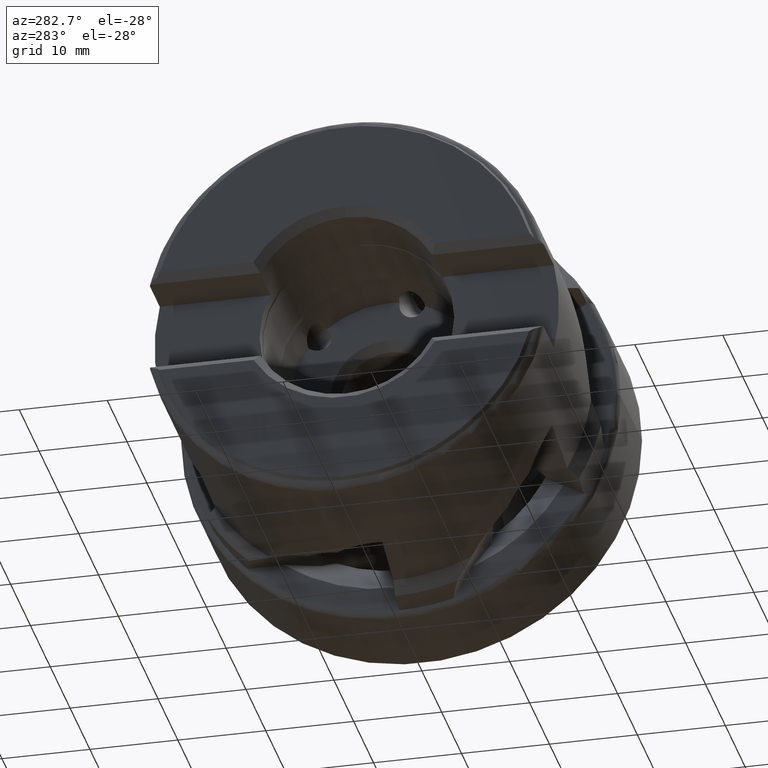
[diagram: clean part render]
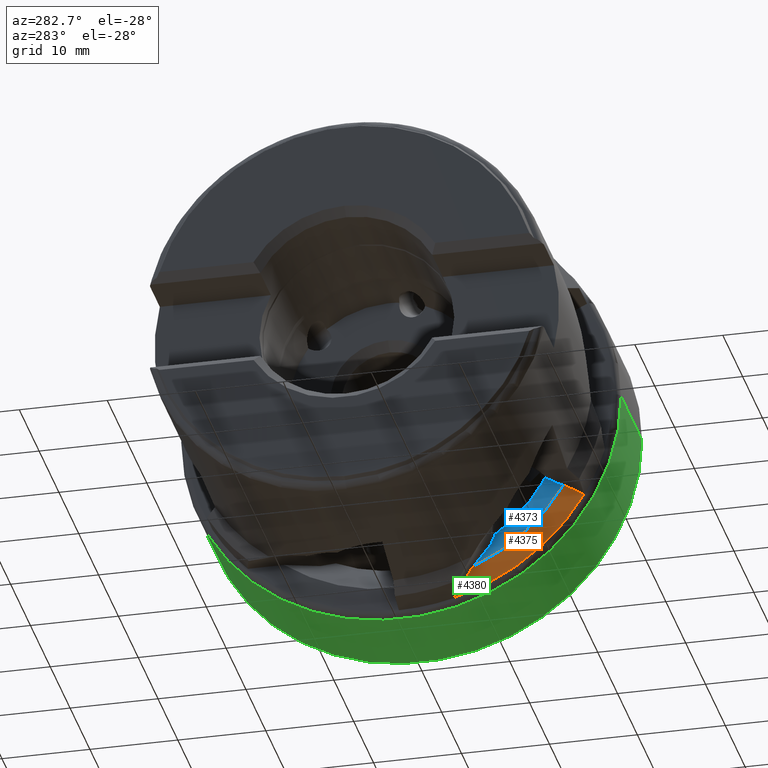
[diagram: same view with three faces highlighted in distinct colors, each labeled with its STEP entity id]
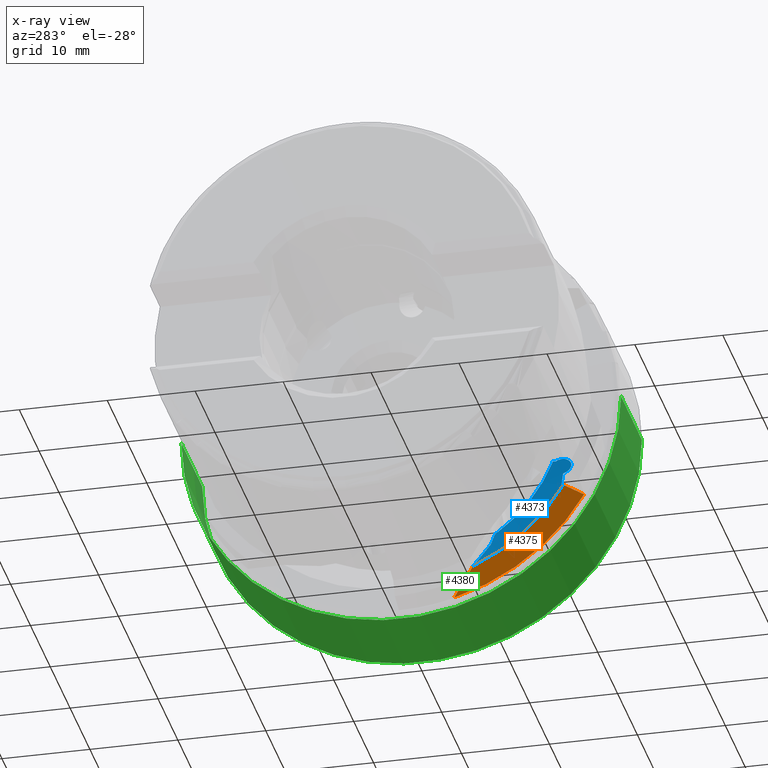
[diagram: x-ray of the same camera — body ghosted, the three highlighted faces saturated]
A machine part, auxiliary view with three faces highlighted in distinct colors.
The next image is the same camera in x-ray (body ghosted, the three faces saturated) — at least one of them is partly hidden behind the body in this view.
Their STEP definitions:

[orange] entity #4375 — the highlighted conical surface has half-angle 85.305 deg.
#482 = EDGE_CURVE ( 'NONE', #2911, #2912, #3850, .T. ) ;
#617 = EDGE_CURVE ( 'NONE', #935, #953, #3632, .T. ) ;
#935 = VERTEX_POINT ( 'NONE', #6344 ) ;
#953 = VERTEX_POINT ( 'NONE', #6359 ) ;
#1285 = EDGE_CURVE ( 'NONE', #2912, #953, #5239, .T. ) ;
#1292 = EDGE_CURVE ( 'NONE', #2911, #935, #5248, .T. ) ;
#1427 = AXIS2_PLACEMENT_3D ( 'NONE', #6489, #6490, #6491 ) ;
#1434 = AXIS2_PLACEMENT_3D ( 'NONE', #6510, #6511, #6512 ) ;
#2911 = VERTEX_POINT ( 'NONE', #6767 ) ;
#2912 = VERTEX_POINT ( 'NONE', #6768 ) ;
#3211 = EDGE_LOOP ( 'NONE', ( #7467, #7470, #7469, #7471 ) ) ;
#3632 = B_SPLINE_CURVE_WITH_KNOTS ( 'NONE', 3,
 ( #6025, #6028, #6034, #6035 ),
 .UNSPECIFIED., .F., .F.,
 ( 4, 4 ),
 ( 4.166116774084875100E-006, 0.004117374130093829800 ),
 .UNSPECIFIED. ) ;
#3850 = B_SPLINE_CURVE_WITH_KNOTS ( 'NONE', 3,
 ( #4965, #4982, #4987, #4988 ),
 .UNSPECIFIED., .F., .F.,
 ( 4, 4 ),
 ( 2.443525194107743500E-006, 0.002647737855099215200 ),
 .UNSPECIFIED. ) ;
#4375 = ADVANCED_FACE ( 'NONE', ( #8386 ), #8398, .T. ) ;
#4965 = CARTESIAN_POINT ( 'NONE',  ( -11.40432091562181500, -18.69506498201483800, -10.87711238184967400 ) ) ;
#4982 = CARTESIAN_POINT ( 'NONE',  ( -11.33214938413738400, -19.45295676266527400, -11.32197240498047800 ) ) ;
#4987 = CARTESIAN_POINT ( 'NONE',  ( -11.25997778894917700, -20.21084853596350000, -11.76683243030204000 ) ) ;
#4988 = CARTESIAN_POINT ( 'NONE',  ( -11.18780614878581000, -20.96874030407102700, -12.21169245717028300 ) ) ;
#5239 = CIRCLE ( 'NONE', #1427, 24.26547964924827700 ) ;
#5248 = CIRCLE ( 'NONE', #1434, 21.62907830789710000 ) ;
#6025 = CARTESIAN_POINT ( 'NONE',  ( -11.40432091562181300, -8.344648171946200700, -19.95454522998660700 ) ) ;
#6028 = CARTESIAN_POINT ( 'NONE',  ( -11.33849374108257600, -7.629427908861799800, -21.12244923167852700 ) ) ;
#6034 = CARTESIAN_POINT ( 'NONE',  ( -11.26564578426167700, -6.915230878216461500, -22.29054487645484500 ) ) ;
#6035 = CARTESIAN_POINT ( 'NONE',  ( -11.18780614878581200, -6.202673036638638700, -23.45933395918644500 ) ) ;
#6344 = CARTESIAN_POINT ( 'NONE',  ( -11.40432091562181300, -8.344648171946200700, -19.95454522998660700 ) ) ;
#6359 = CARTESIAN_POINT ( 'NONE',  ( -11.18780614878581200, -6.202673036638638700, -23.45933395918644500 ) ) ;
#6489 = CARTESIAN_POINT ( 'NONE',  ( -11.18780614878581200, -2.288437318624361700E-015, 0.0000000000000000000 ) ) ;
#6490 = DIRECTION ( 'NONE',  ( 1.000000000000000000, 1.224131289889662100E-016, -0.0000000000000000000 ) ) ;
#6491 = DIRECTION ( 'NONE',  ( -1.429787089356420100E-016, 1.000000000000000000, 0.0000000000000000000 ) ) ;
#6510 = CARTESIAN_POINT ( 'NONE',  ( -11.40432091562181700, -2.314941568705073600E-015, 0.0000000000000000000 ) ) ;
#6511 = DIRECTION ( 'NONE',  ( 1.000000000000000000, 1.224131289889662100E-016, -0.0000000000000000000 ) ) ;
#6512 = DIRECTION ( 'NONE',  ( -1.604066018239375200E-016, 1.000000000000000000, 0.0000000000000000000 ) ) ;
#6767 = CARTESIAN_POINT ( 'NONE',  ( -11.40432091562181500, -18.69506498201483800, -10.87711238184967400 ) ) ;
#6768 = CARTESIAN_POINT ( 'NONE',  ( -11.18780614878581000, -20.96874030407102700, -12.21169245717028300 ) ) ;
#7467 = ORIENTED_EDGE ( 'NONE', *, *, #482, .F. ) ;
#7469 = ORIENTED_EDGE ( 'NONE', *, *, #617, .T. ) ;
#7470 = ORIENTED_EDGE ( 'NONE', *, *, #1292, .T. ) ;
#7471 = ORIENTED_EDGE ( 'NONE', *, *, #1285, .F. ) ;
#8121 = AXIS2_PLACEMENT_3D ( 'NONE', #8790, #8785, #8798 ) ;
#8386 = FACE_OUTER_BOUND ( 'NONE', #3211, .T. ) ;
#8398 = CONICAL_SURFACE ( 'NONE', #8121, 24.26547964924827700, 1.488855098797280600 ) ;
#8785 = DIRECTION ( 'NONE',  ( 1.000000000000000000, 1.224131289889662100E-016, -0.0000000000000000000 ) ) ;
#8790 = CARTESIAN_POINT ( 'NONE',  ( -11.18780614878581200, -2.288437318624361700E-015, 0.0000000000000000000 ) ) ;
#8798 = DIRECTION ( 'NONE',  ( -1.429787089356420100E-016, 1.000000000000000000, 0.0000000000000000000 ) ) ;

[blue] entity #4373 — the highlighted conical surface has half-angle 56.193 deg.
#312 = EDGE_CURVE ( 'NONE', #1734, #1670, #1935, .T. ) ;
#464 = EDGE_CURVE ( 'NONE', #3030, #1734, #3634, .T. ) ;
#469 = EDGE_CURVE ( 'NONE', #2909, #2902, #3876, .T. ) ;
#481 = EDGE_CURVE ( 'NONE', #2909, #2911, #3891, .T. ) ;
#612 = EDGE_CURVE ( 'NONE', #1670, #946, #3643, .T. ) ;
#615 = EDGE_CURVE ( 'NONE', #946, #935, #3894, .T. ) ;
#626 = EDGE_CURVE ( 'NONE', #2902, #3030, #2305, .T. ) ;
#935 = VERTEX_POINT ( 'NONE', #6344 ) ;
#946 = VERTEX_POINT ( 'NONE', #6353 ) ;
#1292 = EDGE_CURVE ( 'NONE', #2911, #935, #5248, .T. ) ;
#1332 = AXIS2_PLACEMENT_3D ( 'NONE', #4085, #4086, #4087 ) ;
#1434 = AXIS2_PLACEMENT_3D ( 'NONE', #6510, #6511, #6512 ) ;
#1670 = VERTEX_POINT ( 'NONE', #6611 ) ;
#1734 = VERTEX_POINT ( 'NONE', #6672 ) ;
#1935 = CIRCLE ( 'NONE', #1332, 18.15965844737856800 ) ;
#2305 = B_SPLINE_CURVE_WITH_KNOTS ( 'NONE', 3,
 ( #6066, #6067, #6077, #6078, #6079, #6080, #6081, #6082, #6083, #6084, #6085, #6086, #6087, #6088, #6089, #6090, #6091, #6092, #6093, #6094, #6095, #6096 ),
 .UNSPECIFIED., .F., .F.,
 ( 4, 2, 2, 2, 2, 2, 2, 2, 2, 2, 4 ),
 ( 0.007810553056109215800, 0.008439096184415776200, 0.008753367748569053700, 0.009067639312722329500, 0.009381910876875607100, 0.009696182441028884700, 0.01032472556933543500, 0.01095326869764198400, 0.01158181182594853600, 0.01221035495425508800, 0.01283889808256163800 ),
 .UNSPECIFIED. ) ;
#2902 = VERTEX_POINT ( 'NONE', #6759 ) ;
#2909 = VERTEX_POINT ( 'NONE', #6765 ) ;
#2911 = VERTEX_POINT ( 'NONE', #6767 ) ;
#3030 = VERTEX_POINT ( 'NONE', #6851 ) ;
#3152 = EDGE_LOOP ( 'NONE', ( #7455, #7451, #7452, #7453, #7447, #7449, #7450, #7443 ) ) ;
#3634 = B_SPLINE_CURVE_WITH_KNOTS ( 'NONE', 3,
 ( #4924, #4923, #4927, #4928 ),
 .UNSPECIFIED., .F., .F.,
 ( 4, 4 ),
 ( 3.606052894416280000E-007, 0.0005286868606829910200 ),
 .UNSPECIFIED. ) ;
#3643 = B_SPLINE_CURVE_WITH_KNOTS ( 'NONE', 3,
 ( #6016, #6011, #6012, #6017 ),
 .UNSPECIFIED., .F., .F.,
 ( 4, 4 ),
 ( 5.014467253296237800E-007, 0.001869180461555846100 ),
 .UNSPECIFIED. ) ;
#3876 =( BOUNDED_CURVE ( )  B_SPLINE_CURVE ( 3, ( #4941, #4937, #4936, #4943 ),
 .UNSPECIFIED., .F., .F. ) 
 B_SPLINE_CURVE_WITH_KNOTS ( ( 4, 4 ),
 ( 2.259192299912101500, 2.314547976957332500 ),
 .UNSPECIFIED. ) 
 CURVE ( )  GEOMETRIC_REPRESENTATION_ITEM ( )  RATIONAL_B_SPLINE_CURVE ( ( 1.000000000000000000, 0.9997446620526038200, 0.9997446620526038200, 1.000000000000000000 ) ) 
 REPRESENTATION_ITEM ( '' )  );
#3891 = B_SPLINE_CURVE_WITH_KNOTS ( 'NONE', 3,
 ( #4980, #4978, #4984, #4985 ),
 .UNSPECIFIED., .F., .F.,
 ( 4, 4 ),
 ( 0.003796645022648031000, 0.004182367086502432200 ),
 .UNSPECIFIED. ) ;
#3894 = B_SPLINE_CURVE_WITH_KNOTS ( 'NONE', 3,
 ( #6010, #6021, #6026, #6027 ),
 .UNSPECIFIED., .F., .F.,
 ( 4, 4 ),
 ( 1.011254863232812100E-006, 0.004085261212676918400 ),
 .UNSPECIFIED. ) ;
#4085 = CARTESIAN_POINT ( 'NONE',  ( -9.081107453799107900, -2.030549739534067500E-015, 0.0000000000000000000 ) ) ;
#4086 = DIRECTION ( 'NONE',  ( 1.000000000000000000, 1.224131289889662100E-016, -0.0000000000000000000 ) ) ;
#4087 = DIRECTION ( 'NONE',  ( -9.552621713693203100E-017, 1.000000000000000000, 0.0000000000000000000 ) ) ;
#4373 = ADVANCED_FACE ( 'NONE', ( #8382 ), #8391, .F. ) ;
#4923 = CARTESIAN_POINT ( 'NONE',  ( -9.276432508998983200, -17.21379764612445100, -6.643623346215795400 ) ) ;
#4924 = CARTESIAN_POINT ( 'NONE',  ( -9.374106474169330700, -17.34476207759184500, -6.709368358788011300 ) ) ;
#4927 = CARTESIAN_POINT ( 'NONE',  ( -9.178765983258621500, -17.08282920527463100, -6.577875267270483700 ) ) ;
#4928 = CARTESIAN_POINT ( 'NONE',  ( -9.081107453799106100, -16.95185645653716800, -6.512123893355147100 ) ) ;
#4936 = CARTESIAN_POINT ( 'NONE',  ( -10.85510977534456800, -18.46435108453285100, -9.608978574882177900 ) ) ;
#4937 = CARTESIAN_POINT ( 'NONE',  ( -11.02059037002170200, -18.44390398588847200, -10.17019970348986700 ) ) ;
#4941 = CARTESIAN_POINT ( 'NONE',  ( -11.18999246746746400, -18.40843508626009900, -10.73327868153507800 ) ) ;
#4943 = CARTESIAN_POINT ( 'NONE',  ( -10.69367744386219600, -18.46976071943263200, -9.050045198865051400 ) ) ;
#4978 = CARTESIAN_POINT ( 'NONE',  ( -11.26143384499167000, -18.50397916231785400, -10.78122384250539900 ) ) ;
#4980 = CARTESIAN_POINT ( 'NONE',  ( -11.18999246746746400, -18.40843508626009900, -10.73327868153507800 ) ) ;
#4984 = CARTESIAN_POINT ( 'NONE',  ( -11.33287668229193000, -18.59952244944256700, -10.82916840051376000 ) ) ;
#4985 = CARTESIAN_POINT ( 'NONE',  ( -11.40432091562181500, -18.69506498201483800, -10.87711238184967400 ) ) ;
#5248 = CIRCLE ( 'NONE', #1434, 21.62907830789710000 ) ;
#6010 = CARTESIAN_POINT ( 'NONE',  ( -9.907739559764202400, -10.07561564545292000, -16.57148543601557500 ) ) ;
#6011 = CARTESIAN_POINT ( 'NONE',  ( -9.329554169553379200, -10.20386669176454800, -15.47484603733239100 ) ) ;
#6012 = CARTESIAN_POINT ( 'NONE',  ( -9.608424262663007200, -10.11188837716946400, -16.02630630916701900 ) ) ;
#6016 = CARTESIAN_POINT ( 'NONE',  ( -9.081107453799109700, -10.36268191143560100, -14.91267979029433700 ) ) ;
#6017 = CARTESIAN_POINT ( 'NONE',  ( -9.907739559764202400, -10.07561564545292000, -16.57148543601557500 ) ) ;
#6021 = CARTESIAN_POINT ( 'NONE',  ( -10.34912455616464300, -9.471054554495440300, -17.71048984740710700 ) ) ;
#6026 = CARTESIAN_POINT ( 'NONE',  ( -10.85459389990446500, -8.893739942360412000, -18.83508636645877100 ) ) ;
#6027 = CARTESIAN_POINT ( 'NONE',  ( -11.40432091562181300, -8.344648171946200700, -19.95454522998660700 ) ) ;
#6066 = CARTESIAN_POINT ( 'NONE',  ( -10.69367744386219600, -18.46976071943263200, -9.050045198865051400 ) ) ;
#6067 = CARTESIAN_POINT ( 'NONE',  ( -10.80491412885217700, -18.64498304818510700, -9.069974835657506100 ) ) ;
#6077 = CARTESIAN_POINT ( 'NONE',  ( -10.91439806327198500, -18.83004672172965100, -9.063655697688727000 ) ) ;
#6078 = CARTESIAN_POINT ( 'NONE',  ( -11.04955088067144700, -19.09725670906815900, -8.970983925778051900 ) ) ;
#6079 = CARTESIAN_POINT ( 'NONE',  ( -11.08984250887845500, -19.18532772998372200, -8.924891562599125200 ) ) ;
#6080 = CARTESIAN_POINT ( 'NONE',  ( -11.14609229040560100, -19.33806838002731300, -8.793834207673215900 ) ) ;
#6081 = CARTESIAN_POINT ( 'NONE',  ( -11.16127219615156500, -19.40222657075760900, -8.707034132643695300 ) ) ;
#6082 = CARTESIAN_POINT ( 'NONE',  ( -11.15653086883564200, -19.48119862662812500, -8.511206578168513600 ) ) ;
#6083 = CARTESIAN_POINT ( 'NONE',  ( -11.13748401136878200, -19.49591031171306100, -8.405706362548587100 ) ) ;
#6084 = CARTESIAN_POINT ( 'NONE',  ( -11.08113314379091500, -19.49029828768598100, -8.204178630078091700 ) ) ;
#6085 = CARTESIAN_POINT ( 'NONE',  ( -11.04360626341035500, -19.47060196471466000, -8.105918909652457300 ) ) ;
#6086 = CARTESIAN_POINT ( 'NONE',  ( -10.91990282690071000, -19.38380510583784400, -7.831756161131865600 ) ) ;
#6087 = CARTESIAN_POINT ( 'NONE',  ( -10.82040523095277600, -19.28867694447011900, -7.668889184647214000 ) ) ;
#6088 = CARTESIAN_POINT ( 'NONE',  ( -10.61389260881934300, -19.06986898595828700, -7.382219417840192800 ) ) ;
#6089 = CARTESIAN_POINT ( 'NONE',  ( -10.50353094749720900, -18.94218752179103800, -7.254764887271927700 ) ) ;
#6090 = CARTESIAN_POINT ( 'NONE',  ( -10.28041173088322500, -18.66908870518916100, -7.035415537547550900 ) ) ;
#6091 = CARTESIAN_POINT ( 'NONE',  ( -10.16707281146019400, -18.52310841972933600, -6.942536180037393500 ) ) ;
#6092 = CARTESIAN_POINT ( 'NONE',  ( -9.936427765205943200, -18.21182009593474000, -6.791585841067697700 ) ) ;
#6093 = CARTESIAN_POINT ( 'NONE',  ( -9.818797081683056800, -18.04598874052680600, -6.733575105044225000 ) ) ;
#6094 = CARTESIAN_POINT ( 'NONE',  ( -9.589359973280100000, -17.70344540779089500, -6.671205234287248800 ) ) ;
#6095 = CARTESIAN_POINT ( 'NONE',  ( -9.475272217780236900, -17.52399098895280700, -6.664795929599996800 ) ) ;
#6096 = CARTESIAN_POINT ( 'NONE',  ( -9.374106474169330700, -17.34476207759184500, -6.709368358788011300 ) ) ;
#6344 = CARTESIAN_POINT ( 'NONE',  ( -11.40432091562181300, -8.344648171946200700, -19.95454522998660700 ) ) ;
#6353 = CARTESIAN_POINT ( 'NONE',  ( -9.907739559764202400, -10.07561564545292000, -16.57148543601557500 ) ) ;
#6510 = CARTESIAN_POINT ( 'NONE',  ( -11.40432091562181700, -2.314941568705073600E-015, 0.0000000000000000000 ) ) ;
#6511 = DIRECTION ( 'NONE',  ( 1.000000000000000000, 1.224131289889662100E-016, -0.0000000000000000000 ) ) ;
#6512 = DIRECTION ( 'NONE',  ( -1.604066018239375200E-016, 1.000000000000000000, 0.0000000000000000000 ) ) ;
#6611 = CARTESIAN_POINT ( 'NONE',  ( -9.081107453799109700, -10.36268191143560100, -14.91267979029433700 ) ) ;
#6672 = CARTESIAN_POINT ( 'NONE',  ( -9.081107453799106100, -16.95185645653716800, -6.512123893355147100 ) ) ;
#6759 = CARTESIAN_POINT ( 'NONE',  ( -10.69367744386219600, -18.46976071943263200, -9.050045198865051400 ) ) ;
#6765 = CARTESIAN_POINT ( 'NONE',  ( -11.18999246746746400, -18.40843508626009900, -10.73327868153507800 ) ) ;
#6767 = CARTESIAN_POINT ( 'NONE',  ( -11.40432091562181500, -18.69506498201483800, -10.87711238184967400 ) ) ;
#6851 = CARTESIAN_POINT ( 'NONE',  ( -9.374106474169330700, -17.34476207759184500, -6.709368358788011300 ) ) ;
#7443 = ORIENTED_EDGE ( 'NONE', *, *, #464, .T. ) ;
#7447 = ORIENTED_EDGE ( 'NONE', *, *, #481, .F. ) ;
#7449 = ORIENTED_EDGE ( 'NONE', *, *, #469, .T. ) ;
#7450 = ORIENTED_EDGE ( 'NONE', *, *, #626, .T. ) ;
#7451 = ORIENTED_EDGE ( 'NONE', *, *, #612, .T. ) ;
#7452 = ORIENTED_EDGE ( 'NONE', *, *, #615, .T. ) ;
#7453 = ORIENTED_EDGE ( 'NONE', *, *, #1292, .F. ) ;
#7455 = ORIENTED_EDGE ( 'NONE', *, *, #312, .T. ) ;
#8115 = AXIS2_PLACEMENT_3D ( 'NONE', #8775, #8776, #8784 ) ;
#8382 = FACE_OUTER_BOUND ( 'NONE', #3152, .T. ) ;
#8391 = CONICAL_SURFACE ( 'NONE', #8115, 21.62907830789710000, 0.9807478074160321800 ) ;
#8775 = CARTESIAN_POINT ( 'NONE',  ( -11.40432091562181700, -2.314941568705073600E-015, 0.0000000000000000000 ) ) ;
#8776 = DIRECTION ( 'NONE',  ( -1.000000000000000000, -1.224131289889662100E-016, 0.0000000000000000000 ) ) ;
#8784 = DIRECTION ( 'NONE',  ( 1.604066018239375200E-016, -1.000000000000000000, 0.0000000000000000000 ) ) ;

[green] entity #4380 — the highlighted cylindrical surface (partial cylindrical patch) has radius 25 mm, axis along (1, 0, -0).
#1287 = EDGE_CURVE ( 'NONE', #1751, #3188, #5243, .T. ) ;
#1300 = EDGE_CURVE ( 'NONE', #1700, #1698, #5255, .T. ) ;
#1429 = AXIS2_PLACEMENT_3D ( 'NONE', #6495, #6496, #6497 ) ;
#1442 = AXIS2_PLACEMENT_3D ( 'NONE', #6539, #6540, #6541 ) ;
#1550 = ORIENTED_EDGE ( 'NONE', *, *, #3925, .F. ) ;
#1551 = ORIENTED_EDGE ( 'NONE', *, *, #1287, .T. ) ;
#1552 = ORIENTED_EDGE ( 'NONE', *, *, #3911, .T. ) ;
#1553 = ORIENTED_EDGE ( 'NONE', *, *, #1300, .F. ) ;
#1698 = VERTEX_POINT ( 'NONE', #6636 ) ;
#1700 = VERTEX_POINT ( 'NONE', #6638 ) ;
#1751 = VERTEX_POINT ( 'NONE', #6689 ) ;
#3145 = EDGE_LOOP ( 'NONE', ( #1550, #1551, #1552, #1553 ) ) ;
#3188 = VERTEX_POINT ( 'NONE', #6864 ) ;
#3911 = EDGE_CURVE ( 'NONE', #3188, #1698, #5329, .T. ) ;
#3925 = EDGE_CURVE ( 'NONE', #1751, #1700, #5344, .T. ) ;
#4380 = ADVANCED_FACE ( 'NONE', ( #8403 ), #8411, .T. ) ;
#5243 = CIRCLE ( 'NONE', #1429, 25.00000000000000400 ) ;
#5255 = CIRCLE ( 'NONE', #1442, 24.99999999999999600 ) ;
#5329 = LINE ( 'NONE', #7098, #5331 ) ;
#5331 = VECTOR ( 'NONE', #7099, 1000.000000000000000 ) ;
#5344 = LINE ( 'NONE', #7132, #5346 ) ;
#5346 = VECTOR ( 'NONE', #7133, 1000.000000000000000 ) ;
#6495 = CARTESIAN_POINT ( 'NONE',  ( -10.39049039230389900, -2.190835402081206300E-015, 0.0000000000000000000 ) ) ;
#6496 = DIRECTION ( 'NONE',  ( 1.000000000000000000, 1.224131289889662100E-016, -0.0000000000000000000 ) ) ;
#6497 = DIRECTION ( 'NONE',  ( -1.387778780781445400E-016, 1.000000000000000000, 0.0000000000000000000 ) ) ;
#6539 = CARTESIAN_POINT ( 'NONE',  ( 0.1000000000000011300, -9.066616485305981800E-016, 0.0000000000000000000 ) ) ;
#6540 = DIRECTION ( 'NONE',  ( 1.000000000000000000, 1.224131289889662100E-016, -0.0000000000000000000 ) ) ;
#6541 = DIRECTION ( 'NONE',  ( -1.225148454908620300E-016, 1.000000000000000000, 0.0000000000000000000 ) ) ;
#6636 = CARTESIAN_POINT ( 'NONE',  ( 0.09999999999999806300, 25.00000000000000000, 0.0000000000000000000 ) ) ;
#6638 = CARTESIAN_POINT ( 'NONE',  ( 0.1000000000000042000, -25.00000000000000000, 3.061616997868383000E-015 ) ) ;
#6689 = CARTESIAN_POINT ( 'NONE',  ( -10.39049039230389600, -25.00000000000000700, 3.061616997868383000E-015 ) ) ;
#6864 = CARTESIAN_POINT ( 'NONE',  ( -10.39049039230390300, 25.00000000000000000, 0.0000000000000000000 ) ) ;
#7098 = CARTESIAN_POINT ( 'NONE',  ( 7.506571958570885900, 25.00000000000000000, 0.0000000000000000000 ) ) ;
#7099 = DIRECTION ( 'NONE',  ( 1.000000000000000000, 1.224131289889662100E-016, -0.0000000000000000000 ) ) ;
#7132 = CARTESIAN_POINT ( 'NONE',  ( 7.506571958570893000, -25.00000000000000000, 3.061616997868383000E-015 ) ) ;
#7133 = DIRECTION ( 'NONE',  ( 1.000000000000000000, 1.224131289889662100E-016, -0.0000000000000000000 ) ) ;
#8136 = AXIS2_PLACEMENT_3D ( 'NONE', #8819, #8820, #8828 ) ;
#8403 = FACE_OUTER_BOUND ( 'NONE', #3145, .T. ) ;
#8411 = CYLINDRICAL_SURFACE ( 'NONE', #8136, 25.00000000000000000 ) ;
#8819 = CARTESIAN_POINT ( 'NONE',  ( 7.506571958570889400, 0.0000000000000000000, 0.0000000000000000000 ) ) ;
#8820 = DIRECTION ( 'NONE',  ( 1.000000000000000000, 1.224131289889662100E-016, -0.0000000000000000000 ) ) ;
#8828 = DIRECTION ( 'NONE',  ( -1.387778780781445700E-016, 1.000000000000000000, 0.0000000000000000000 ) ) ;